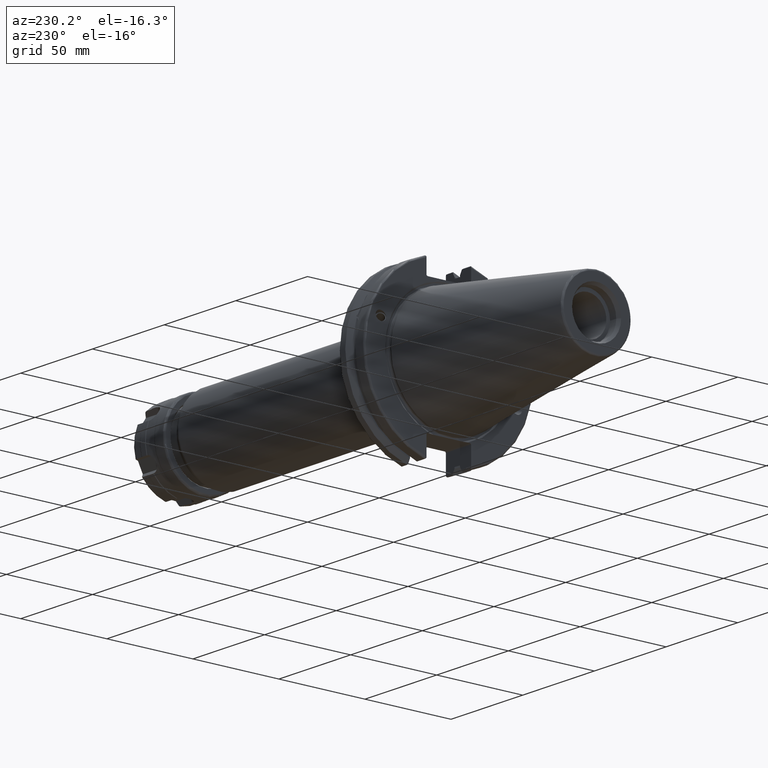
[diagram: clean part render]
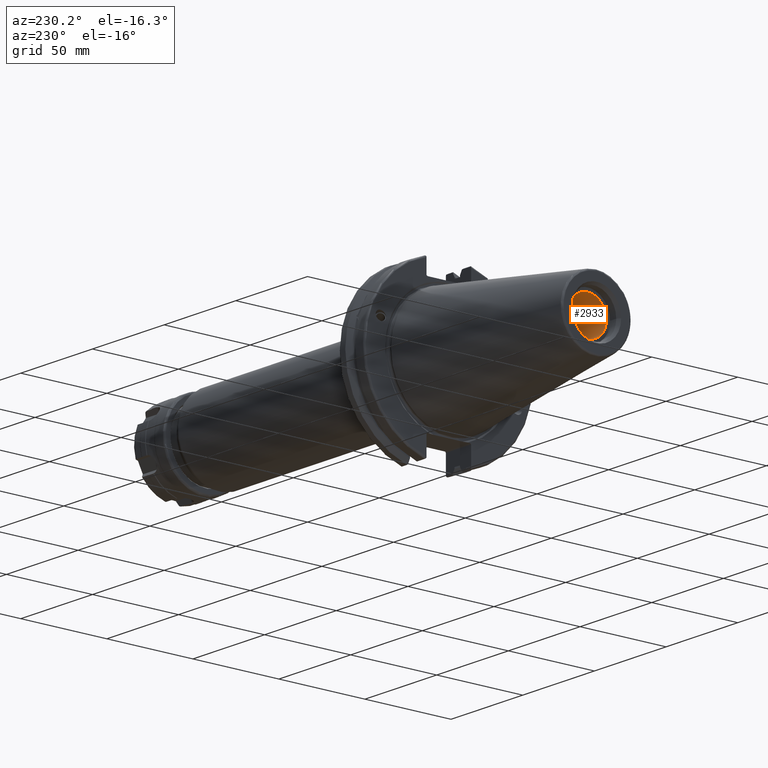
[diagram: same view with one face highlighted and labeled with its STEP entity id]
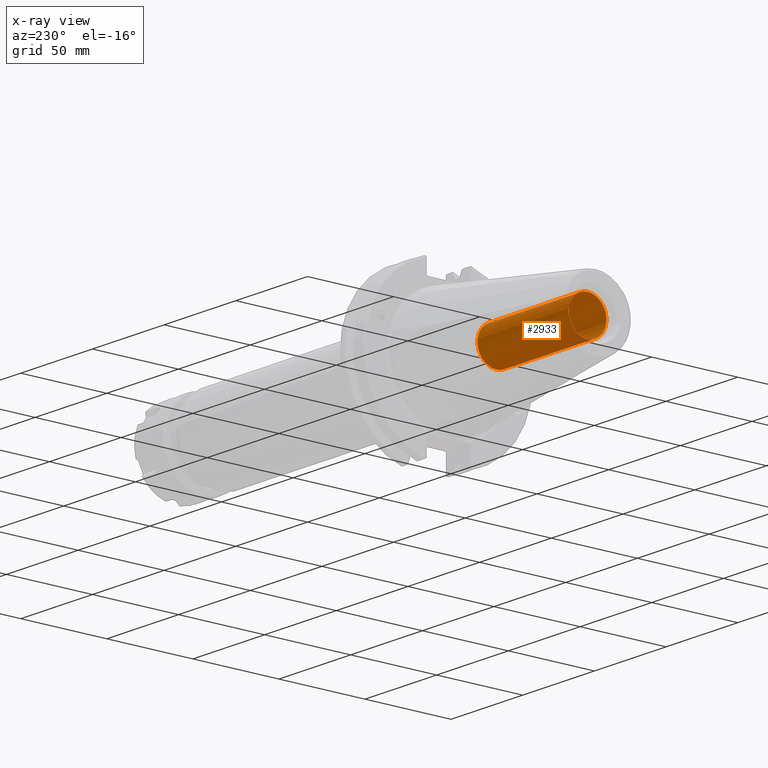
[diagram: x-ray of the same camera — body ghosted, the highlighted face saturated]
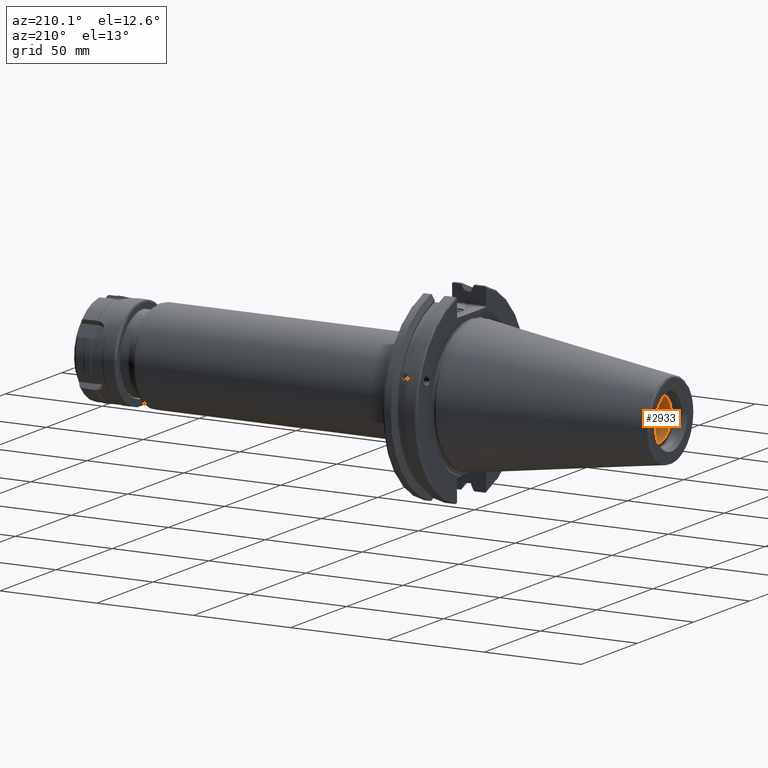
[diagram: same view with one face highlighted and labeled with its STEP entity id]
A machine part, auxiliary view. The second image highlights one B-rep face of the part: STEP entity #2933.
The next image is the same camera in x-ray: the body ghosted, the highlighted face saturated — about 0% of this face is hidden behind the body in this view.
A second angle (auxiliary view) of the same face is appended — the face is thin or edge-on in the first view.
In plain terms, the highlighted cylindrical surface (bore or boss wall) has radius 10.9855 mm, axis along (-1, 0, 0).
Its self-contained STEP definition (entity closure, byte-faithful):
#166=CYLINDRICAL_SURFACE('',#3228,10.9855);
#241=LINE('',#4974,#411);
#411=VECTOR('',#3724,10.9855);
#704=FACE_OUTER_BOUND('',#885,.T.);
#885=EDGE_LOOP('',(#2184,#2185,#2186,#2187));
#1082=CIRCLE('',#3227,10.9855);
#1083=CIRCLE('',#3229,10.9855);
#1293=VERTEX_POINT('',#4968);
#1294=VERTEX_POINT('',#4972);
#1631=EDGE_CURVE('',#1293,#1293,#1082,.T.);
#1633=EDGE_CURVE('',#1294,#1294,#1083,.T.);
#1634=EDGE_CURVE('',#1294,#1293,#241,.T.);
#2184=ORIENTED_EDGE('',*,*,#1633,.F.);
#2185=ORIENTED_EDGE('',*,*,#1634,.T.);
#2186=ORIENTED_EDGE('',*,*,#1631,.F.);
#2187=ORIENTED_EDGE('',*,*,#1634,.F.);
#2933=ADVANCED_FACE('',(#704),#166,.F.);
#3227=AXIS2_PLACEMENT_3D('',#4969,#3717,#3718);
#3228=AXIS2_PLACEMENT_3D('',#4971,#3720,#3721);
#3229=AXIS2_PLACEMENT_3D('',#4973,#3722,#3723);
#3717=DIRECTION('center_axis',(-1.,0.,0.));
#3718=DIRECTION('ref_axis',(0.,0.,1.));
#3720=DIRECTION('center_axis',(-1.,0.,0.));
#3721=DIRECTION('ref_axis',(0.,0.,1.));
#3722=DIRECTION('center_axis',(1.,0.,0.));
#3723=DIRECTION('ref_axis',(0.,0.,1.));
#3724=DIRECTION('',(1.,0.,0.));
#4968=CARTESIAN_POINT('',(-31.6,-1.34533574120333E-15,-10.9855));
#4969=CARTESIAN_POINT('Origin',(-31.6,0.,0.));
#4971=CARTESIAN_POINT('Origin',(-66.6,0.,0.));
#4972=CARTESIAN_POINT('',(-95.25,1.34533574120333E-15,-10.9855));
#4973=CARTESIAN_POINT('Origin',(-95.25,0.,0.));
#4974=CARTESIAN_POINT('',(-66.6,-1.34533574120333E-15,-10.9855));